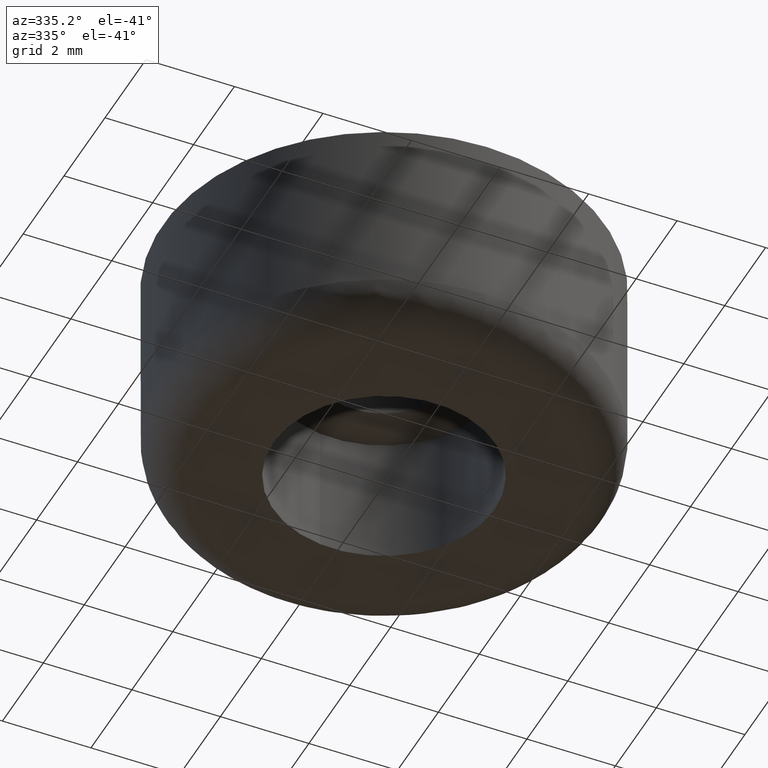
[diagram: clean part render]
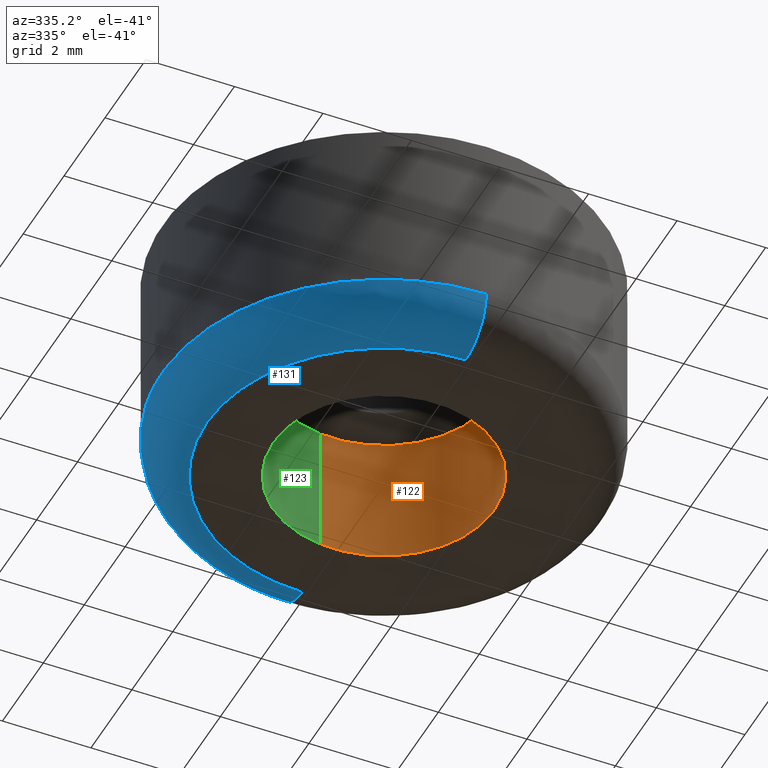
[diagram: same view with three faces highlighted in distinct colors, each labeled with its STEP entity id]
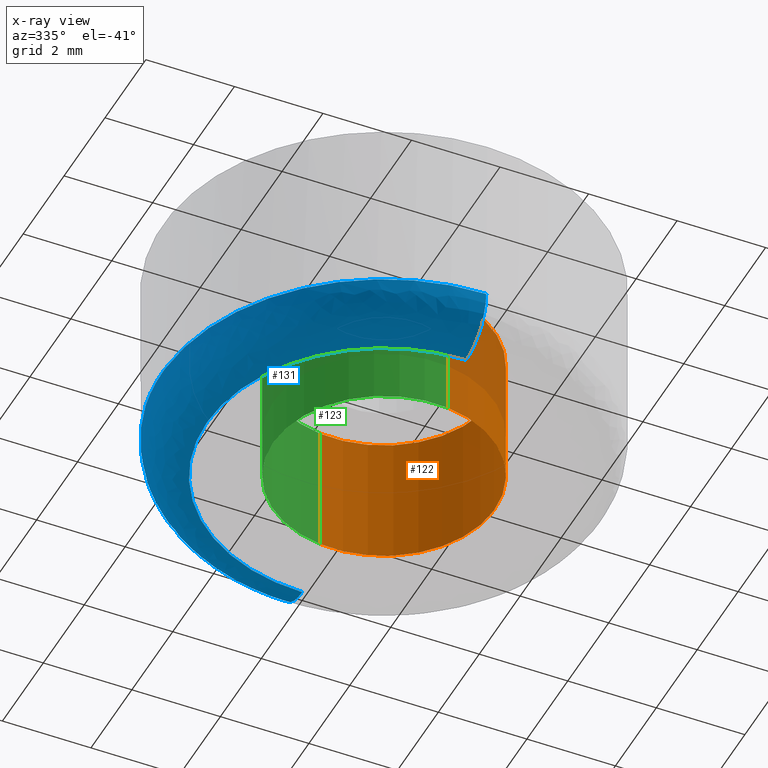
[diagram: x-ray of the same camera — body ghosted, the three highlighted faces saturated]
A machine part, auxiliary view with three faces highlighted in distinct colors.
The next image is the same camera in x-ray (body ghosted, the three faces saturated) — at least one of them is partly hidden behind the body in this view.
Their STEP definitions:

[orange] entity #122 — the highlighted cylindrical surface (partial cylindrical patch) has radius 2.5 mm, axis along (0, 0, 1).
#122=ADVANCED_FACE('',(#239),#238,.F.);
#238=CYLINDRICAL_SURFACE('',#397,2.50000000000E+000);
#239=FACE_OUTER_BOUND('',#398,.T.);
#394=CARTESIAN_POINT('',(4.33468580467E-015,4.89105161793E-016,3.07500000000E+000));
#395=DIRECTION('',(2.58322924375E-015,3.07055953275E-016,1.00000000000E+000));
#396=DIRECTION('',(1.18034234657E-001,-9.93009526364E-001,-4.28943117214E-030));
#397=AXIS2_PLACEMENT_3D('',#394,#395,#396);
#398=EDGE_LOOP('',(#542,#543,#544,#545));
#542=ORIENTED_EDGE('',*,*,#622,.T.);
#543=ORIENTED_EDGE('',*,*,#642,.T.);
#544=ORIENTED_EDGE('',*,*,#628,.F.);
#545=ORIENTED_EDGE('',*,*,#643,.F.);
#622=EDGE_CURVE('',#797,#789,#798,.T.);
#628=EDGE_CURVE('',#832,#839,#840,.T.);
#642=EDGE_CURVE('',#789,#839,#936,.T.);
#643=EDGE_CURVE('',#797,#832,#942,.T.);
#789=VERTEX_POINT('',#1135);
#797=VERTEX_POINT('',#1141);
#798=CIRCLE('',#1145,2.50000000000E+000);
#832=VERTEX_POINT('',#1166);
#839=VERTEX_POINT('',#1171);
#840=CIRCLE('',#1175,2.50000000000E+000);
#936=(BOUNDED_CURVE() B_SPLINE_CURVE(1,(#1240,#1241),.UNSPECIFIED.,.F.,.F.) B_SPLINE_CURVE_WITH_KNOTS((2,2),(8.33333233997E-002,9.16666663280E-001),.UNSPECIFIED.) CURVE() GEOMETRIC_REPRESENTATION_ITEM() RATIONAL_B_SPLINE_CURVE((1.00000000000E+000,1.00000000000E+000)) REPRESENTATION_ITEM('') );
#942=(BOUNDED_CURVE() B_SPLINE_CURVE(1,(#1242,#1243),.UNSPECIFIED.,.F.,.F.) B_SPLINE_CURVE_WITH_KNOTS((2,2),(8.33333333334E-002,9.16666666667E-001),.UNSPECIFIED.) CURVE() GEOMETRIC_REPRESENTATION_ITEM() RATIONAL_B_SPLINE_CURVE((7.50000000000E-001,7.50000000000E-001)) REPRESENTATION_ITEM('') );
#1135=CARTESIAN_POINT('',(2.95084678797E-001,-2.48252392382E+000,6.84156620608E-015));
#1141=CARTESIAN_POINT('',(-2.95514653005E-001,2.48247277726E+000,3.43152040372E-015));
#1142=CARTESIAN_POINT('',(3.31068505943E-013,1.50990331349E-013,5.13154013306E-015));
#1143=DIRECTION('',(-2.28667062420E-014,-3.40687179626E-015,-1.00000000000E+000));
#1144=DIRECTION('',(-1.00000000000E+000,-6.00214322688E-014,2.28667062420E-014));
#1145=AXIS2_PLACEMENT_3D('',#1142,#1143,#1144);
#1166=CARTESIAN_POINT('',(-2.95514653005E-001,2.48247277726E+000,3.00000000000E+000));
#1171=CARTESIAN_POINT('',(2.95084678797E-001,-2.48252392382E+000,3.00000000000E+000));
#1172=CARTESIAN_POINT('',(6.85007606194E-013,-1.05249142734E-013,3.00000000000E+000));
#1173=DIRECTION('',(-5.32907051820E-016,3.76822190084E-016,-1.00000000000E+000));
#1174=DIRECTION('',(-1.00000000000E+000,4.13891143580E-014,5.32907051820E-016));
#1175=AXIS2_PLACEMENT_3D('',#1172,#1173,#1174);
#1240=CARTESIAN_POINT('',(2.95085586642E-001,-2.48252381591E+000,-3.57610832613E-008));
#1241=CARTESIAN_POINT('',(2.95085586642E-001,-2.48252381591E+000,2.99999998781E+000));
#1242=CARTESIAN_POINT('',(-2.95085586642E-001,2.48252381591E+000,2.10942374679E-014));
#1243=CARTESIAN_POINT('',(-2.95085586642E-001,2.48252381591E+000,3.00000000000E+000));

[blue] entity #131 — the highlighted face is a freeform B-spline surface patch.
#131=ADVANCED_FACE('',(#329),#328,.T.);
#328=( BOUNDED_SURFACE() B_SPLINE_SURFACE( 2,2,((#460,#461,#462,#463,#464),(#465,#466,#467,#468,#469),(#470,#471,#472,#473,#474),(#475,#476,#477,#478,#479),(#480,#481,#482,#483,#484)), .UNSPECIFIED.,.F.,.F.,.F.) B_SPLINE_SURFACE_WITH_KNOTS((3,2,3),(3,2,3),(-5.02449880769E-006,1.04719587636E+000,1.57079645909E+000),(3.14159265359E+000,4.71238898038E+000,6.28318530718E+000), .UNSPECIFIED. ) GEOMETRIC_REPRESENTATION_ITEM() RATIONAL_B_SPLINE_SURFACE(((1.00000000000E+000,7.07106781187E-001,1.00000000000E+000,7.07106781187E-001,1.00000000000E+000),(8.66024566367E-001,6.12371843552E-001,8.66024566367E-001,6.12371843552E-001,8.66024566367E-001),(1.00000000000E+000,7.07106781187E-001,1.00000000000E+000,7.07106781187E-001,1.00000000000E+000),(9.33012266257E-001,6.59739300401E-001,9.33012266257E-001,6.59739300401E-001,9.33012266257E-001),(9.33012283183E-001,6.59739312369E-001,9.33012283183E-001,6.59739312369E-001,9.33012283183E-001))) REPRESENTATION_ITEM('') SURFACE() );
#329=FACE_OUTER_BOUND('',#485,.T.);
#460=CARTESIAN_POINT('',(-2.27926380464E-015,4.99999999999E+000,1.00000502450E+000));
#461=CARTESIAN_POINT('',(-4.99999999999E+000,4.99999999999E+000,1.00000502450E+000));
#462=CARTESIAN_POINT('',(-4.99999999999E+000,1.12242052249E-015,1.00000502450E+000));
#463=CARTESIAN_POINT('',(-4.99999999999E+000,-4.99999999999E+000,1.00000502450E+000));
#464=CARTESIAN_POINT('',(-1.05465745083E-015,-4.99999999999E+000,1.00000502450E+000));
#465=CARTESIAN_POINT('',(-2.30367758460E-015,5.00000290089E+000,4.22652522204E-001));
#466=CARTESIAN_POINT('',(-5.00000290089E+000,5.00000290089E+000,4.22652522204E-001));
#467=CARTESIAN_POINT('',(-5.00000290089E+000,1.09674768119E-015,4.22652522204E-001));
#468=CARTESIAN_POINT('',(-5.00000290089E+000,-5.00000290089E+000,4.22652522204E-001));
#469=CARTESIAN_POINT('',(-1.07907052029E-015,-5.00000290089E+000,4.22652522204E-001));
#470=CARTESIAN_POINT('',(-2.25465383705E-015,4.50000145045E+000,1.33975433633E-001));
#471=CARTESIAN_POINT('',(-4.50000145045E+000,4.50000145045E+000,1.33975433633E-001));
#472=CARTESIAN_POINT('',(-4.50000145045E+000,1.14514189624E-015,1.33975433633E-001));
#473=CARTESIAN_POINT('',(-4.50000145045E+000,-4.50000145045E+000,1.33975433633E-001));
#474=CARTESIAN_POINT('',(-1.15250776337E-015,-4.50000145045E+000,1.33975433633E-001));
#475=CARTESIAN_POINT('',(-2.23190184226E-015,4.26795002713E+000,-3.62823375291E-008));
#476=CARTESIAN_POINT('',(-4.26795002713E+000,4.26795002713E+000,-3.62823373136E-008));
#477=CARTESIAN_POINT('',(-4.26795002713E+000,1.16760172405E-015,-3.62823371275E-008));
#478=CARTESIAN_POINT('',(-4.26795002713E+000,-4.26795002713E+000,-3.62823368929E-008));
#479=CARTESIAN_POINT('',(-1.18659009806E-015,-4.26795002713E+000,-3.62823370978E-008));
#480=CARTESIAN_POINT('',(-2.19908849357E-015,3.99999986459E+000,1.14730356870E-014));
#481=CARTESIAN_POINT('',(-3.99999986459E+000,3.99999986459E+000,1.16549580484E-014));
#482=CARTESIAN_POINT('',(-3.99999986459E+000,1.20041507282E-015,1.18300158720E-014));
#483=CARTESIAN_POINT('',(-3.99999986459E+000,-3.99999986459E+000,1.20125574492E-014));
#484=CARTESIAN_POINT('',(-1.21940344368E-015,-3.99999986459E+000,1.18448900433E-014));
#485=EDGE_LOOP('',(#593,#594,#595,#596,#597,#598,#599,#600,#601));
#593=ORIENTED_EDGE('',*,*,#618,.F.);
#594=ORIENTED_EDGE('',*,*,#620,.F.);
#595=ORIENTED_EDGE('',*,*,#658,.F.);
#596=ORIENTED_EDGE('',*,*,#651,.T.);
#597=ORIENTED_EDGE('',*,*,#650,.T.);
#598=ORIENTED_EDGE('',*,*,#649,.T.);
#599=ORIENTED_EDGE('',*,*,#657,.T.);
#600=ORIENTED_EDGE('',*,*,#656,.T.);
#601=ORIENTED_EDGE('',*,*,#659,.T.);
#618=EDGE_CURVE('',#768,#769,#770,.T.);
#620=EDGE_CURVE('',#776,#768,#783,.T.);
#649=EDGE_CURVE('',#979,#972,#980,.T.);
#650=EDGE_CURVE('',#986,#979,#987,.T.);
#651=EDGE_CURVE('',#993,#986,#994,.T.);
#656=EDGE_CURVE('',#1027,#1020,#1028,.T.);
#657=EDGE_CURVE('',#972,#1027,#1034,.T.);
#658=EDGE_CURVE('',#993,#776,#1040,.T.);
#659=EDGE_CURVE('',#1020,#769,#1046,.T.);
#768=VERTEX_POINT('',#1120);
#769=VERTEX_POINT('',#1121);
#770=CIRCLE('',#1125,4.00000000016E+000);
#776=VERTEX_POINT('',#1126);
#783=CIRCLE('',#1134,4.00000000016E+000);
#972=VERTEX_POINT('',#1252);
#979=VERTEX_POINT('',#1255);
#980=CIRCLE('',#1259,5.00000000000E+000);
#986=VERTEX_POINT('',#1260);
#987=CIRCLE('',#1264,4.99999999995E+000);
#993=VERTEX_POINT('',#1265);
#994=CIRCLE('',#1269,5.00000000000E+000);
#1020=VERTEX_POINT('',#1282);
#1027=VERTEX_POINT('',#1287);
#1028=CIRCLE('',#1291,5.00000000000E+000);
#1034=CIRCLE('',#1295,5.00000000000E+000);
#1040=(BOUNDED_CURVE() B_SPLINE_CURVE(2,(#1296,#1297,#1298,#1299,#1300),.UNSPECIFIED.,.F.,.F.) B_SPLINE_CURVE_WITH_KNOTS((3,2,3),(2.60229384581E-007,1.04719587636E+000,1.57079628518E+000),.UNSPECIFIED.) CURVE() GEOMETRIC_REPRESENTATION_ITEM() RATIONAL_B_SPLINE_CURVE((1.00000000000E+000,8.66024566367E-001,1.00000000000E+000,9.33012288507E-001,9.33012283183E-001)) REPRESENTATION_ITEM('') );
#1046=(BOUNDED_CURVE() B_SPLINE_CURVE(2,(#1301,#1302,#1303,#1304,#1305),.UNSPECIFIED.,.F.,.F.) B_SPLINE_CURVE_WITH_KNOTS((3,2,3),(-5.02449880769E-006,1.04719587636E+000,1.57079645909E+000),.UNSPECIFIED.) CURVE() GEOMETRIC_REPRESENTATION_ITEM() RATIONAL_B_SPLINE_CURVE((1.00000000000E+000,8.66024566367E-001,1.00000000000E+000,9.33012266257E-001,9.33012283183E-001)) REPRESENTATION_ITEM('') );
#1120=CARTESIAN_POINT('',(-4.00000000032E+000,-4.99600361081E-016,1.52177099518E-014));
#1121=CARTESIAN_POINT('',(-1.47821472410E-010,4.00000000009E+000,-1.87331645785E-016));
#1122=CARTESIAN_POINT('',(-1.61194835258E-010,-6.81554812587E-011,3.11115901998E-016));
#1123=DIRECTION('',(-3.72664851231E-015,-1.24611886928E-016,-1.00000000000E+000));
#1124=DIRECTION('',(-1.00000000000E+000,1.70391131760E-011,3.72664851231E-015));
#1125=AXIS2_PLACEMENT_3D('',#1122,#1123,#1124);
#1126=CARTESIAN_POINT('',(-6.50040060619E-011,-4.00000000023E+000,8.09563449373E-016));
#1131=CARTESIAN_POINT('',(-1.61194835258E-010,-6.81554812587E-011,3.11115901998E-016));
#1132=DIRECTION('',(-3.72664851231E-015,-1.24611886928E-016,-1.00000000000E+000));
#1133=DIRECTION('',(-1.00000000000E+000,1.70391131760E-011,3.72664851231E-015));
#1134=AXIS2_PLACEMENT_3D('',#1131,#1132,#1133);
#1252=CARTESIAN_POINT('',(-4.87984390253E+000,1.08955196613E+000,1.00000000000E+000));
#1255=CARTESIAN_POINT('',(-5.00000000000E+000,0.00000000000E+000,1.00000000000E+000));
#1256=CARTESIAN_POINT('',(5.22692999994E-013,-5.09814412908E-013,9.99999999981E-001));
#1257=DIRECTION('',(-3.85391718538E-012,9.68161009465E-028,-1.00000000000E+000));
#1258=DIRECTION('',(1.00000000000E+000,-1.01962882582E-013,-3.85391718538E-012));
#1259=AXIS2_PLACEMENT_3D('',#1256,#1257,#1258);
#1260=CARTESIAN_POINT('',(-4.99842094642E+000,-1.25650477218E-001,9.99999999981E-001));
#1261=CARTESIAN_POINT('',(-5.14672748864E-011,-6.13148420925E-013,9.99999940501E-001));
#1262=DIRECTION('',(-1.18998908855E-008,6.36637710442E-015,-1.00000000000E+000));
#1263=DIRECTION('',(9.99684189283E-001,2.51300954437E-002,-1.18961326124E-008));
#1264=AXIS2_PLACEMENT_3D('',#1261,#1262,#1263);
#1265=CARTESIAN_POINT('',(-2.12371853669E-011,-5.00000000000E+000,1.00000000000E+000));
#1266=CARTESIAN_POINT('',(1.64090963040E-012,-2.16937579012E-012,1.00000000000E+000));
#1267=DIRECTION('',(-1.75415275237E-015,-1.84450748510E-015,-1.00000000000E+000));
#1268=DIRECTION('',(-9.75968999961E-001,2.17909410342E-001,1.31006316906E-015));
#1269=AXIS2_PLACEMENT_3D('',#1266,#1267,#1268);
#1282=CARTESIAN_POINT('',(-6.35795946517E-004,4.99999995958E+000,1.00000000002E+000));
#1287=CARTESIAN_POINT('',(-1.25650477218E-001,4.99842094642E+000,9.99999999981E-001));
#1288=CARTESIAN_POINT('',(3.99680288865E-015,4.44089209850E-015,9.99999999969E-001));
#1289=DIRECTION('',(2.98800426376E-010,9.99129983372E-012,-1.00000000000E+000));
#1290=DIRECTION('',(2.51300954435E-002,-9.99684189283E-001,-2.47926124075E-012));
#1291=AXIS2_PLACEMENT_3D('',#1288,#1289,#1290);
#1292=CARTESIAN_POINT('',(5.22692999994E-013,-5.09814412908E-013,9.99999999981E-001));
#1293=DIRECTION('',(-3.85391718538E-012,9.68161009465E-028,-1.00000000000E+000));
#1294=DIRECTION('',(1.00000000000E+000,-1.01962882582E-013,-3.85391718538E-012));
#1295=AXIS2_PLACEMENT_3D('',#1292,#1293,#1294);
#1296=CARTESIAN_POINT('',(-1.05465745083E-015,-4.99999999999E+000,1.00000502450E+000));
#1297=CARTESIAN_POINT('',(-1.07907052029E-015,-5.00000290089E+000,4.22652522204E-001));
#1298=CARTESIAN_POINT('',(-1.15250776337E-015,-4.50000145045E+000,1.33975433633E-001));
#1299=CARTESIAN_POINT('',(-1.18659008592E-015,-4.26795010974E+000,1.14118682501E-008));
#1300=CARTESIAN_POINT('',(-1.21940342188E-015,-4.00000004259E+000,3.58428506082E-015));
#1301=CARTESIAN_POINT('',(-2.27926380464E-015,4.99999999999E+000,1.00000502450E+000));
#1302=CARTESIAN_POINT('',(-2.30367758460E-015,5.00000290089E+000,4.22652522204E-001));
#1303=CARTESIAN_POINT('',(-2.25465383705E-015,4.50000145045E+000,1.33975433633E-001));
#1304=CARTESIAN_POINT('',(-2.23190184226E-015,4.26795002713E+000,-3.62823375291E-008));
#1305=CARTESIAN_POINT('',(-2.19908849357E-015,3.99999986459E+000,1.14730356870E-014));

[green] entity #123 — the highlighted cylindrical surface (partial cylindrical patch) has radius 2.5 mm, axis along (0, 0, 1).
#123=ADVANCED_FACE('',(#249),#248,.F.);
#248=CYLINDRICAL_SURFACE('',#402,2.50000000000E+000);
#249=FACE_OUTER_BOUND('',#403,.T.);
#399=CARTESIAN_POINT('',(4.33468580467E-015,4.89105161793E-016,3.07500000000E+000));
#400=DIRECTION('',(2.58322924375E-015,3.07055953275E-016,1.00000000000E+000));
#401=DIRECTION('',(1.18034234657E-001,-9.93009526364E-001,-4.28943117214E-030));
#402=AXIS2_PLACEMENT_3D('',#399,#400,#401);
#403=EDGE_LOOP('',(#546,#547,#548,#549,#550,#551));
#546=ORIENTED_EDGE('',*,*,#627,.F.);
#547=ORIENTED_EDGE('',*,*,#629,.F.);
#548=ORIENTED_EDGE('',*,*,#642,.F.);
#549=ORIENTED_EDGE('',*,*,#621,.T.);
#550=ORIENTED_EDGE('',*,*,#623,.T.);
#551=ORIENTED_EDGE('',*,*,#643,.T.);
#621=EDGE_CURVE('',#789,#790,#791,.T.);
#623=EDGE_CURVE('',#790,#797,#804,.T.);
#627=EDGE_CURVE('',#831,#832,#833,.T.);
#629=EDGE_CURVE('',#839,#831,#846,.T.);
#642=EDGE_CURVE('',#789,#839,#936,.T.);
#643=EDGE_CURVE('',#797,#832,#942,.T.);
#789=VERTEX_POINT('',#1135);
#790=VERTEX_POINT('',#1136);
#791=CIRCLE('',#1140,2.50000000000E+000);
#797=VERTEX_POINT('',#1141);
#804=CIRCLE('',#1149,2.50000000000E+000);
#831=VERTEX_POINT('',#1165);
#832=VERTEX_POINT('',#1166);
#833=CIRCLE('',#1170,2.50000000000E+000);
#839=VERTEX_POINT('',#1171);
#846=CIRCLE('',#1179,2.50000000000E+000);
#936=(BOUNDED_CURVE() B_SPLINE_CURVE(1,(#1240,#1241),.UNSPECIFIED.,.F.,.F.) B_SPLINE_CURVE_WITH_KNOTS((2,2),(8.33333233997E-002,9.16666663280E-001),.UNSPECIFIED.) CURVE() GEOMETRIC_REPRESENTATION_ITEM() RATIONAL_B_SPLINE_CURVE((1.00000000000E+000,1.00000000000E+000)) REPRESENTATION_ITEM('') );
#942=(BOUNDED_CURVE() B_SPLINE_CURVE(1,(#1242,#1243),.UNSPECIFIED.,.F.,.F.) B_SPLINE_CURVE_WITH_KNOTS((2,2),(8.33333333334E-002,9.16666666667E-001),.UNSPECIFIED.) CURVE() GEOMETRIC_REPRESENTATION_ITEM() RATIONAL_B_SPLINE_CURVE((7.50000000000E-001,7.50000000000E-001)) REPRESENTATION_ITEM('') );
#1135=CARTESIAN_POINT('',(2.95084678797E-001,-2.48252392382E+000,6.84156620608E-015));
#1136=CARTESIAN_POINT('',(-2.50000000000E+000,0.00000000000E+000,6.22983057381E-014));
#1137=CARTESIAN_POINT('',(3.31068505943E-013,1.50990331349E-013,5.13154013306E-015));
#1138=DIRECTION('',(-2.28667062420E-014,-3.40687179626E-015,-1.00000000000E+000));
#1139=DIRECTION('',(-1.00000000000E+000,-6.00214322688E-014,2.28667062420E-014));
#1140=AXIS2_PLACEMENT_3D('',#1137,#1138,#1139);
#1141=CARTESIAN_POINT('',(-2.95514653005E-001,2.48247277726E+000,3.43152040372E-015));
#1146=CARTESIAN_POINT('',(3.31068505943E-013,1.50990331349E-013,5.13154013306E-015));
#1147=DIRECTION('',(-2.28667062420E-014,-3.40687179626E-015,-1.00000000000E+000));
#1148=DIRECTION('',(-1.00000000000E+000,-6.00214322688E-014,2.28667062420E-014));
#1149=AXIS2_PLACEMENT_3D('',#1146,#1147,#1148);
#1165=CARTESIAN_POINT('',(-2.50000000000E+000,-9.72285403288E-016,3.00000000000E+000));
#1166=CARTESIAN_POINT('',(-2.95514653005E-001,2.48247277726E+000,3.00000000000E+000));
#1167=CARTESIAN_POINT('',(6.85007606194E-013,-1.05249142734E-013,3.00000000000E+000));
#1168=DIRECTION('',(-5.32907051820E-016,3.76822190084E-016,-1.00000000000E+000));
#1169=DIRECTION('',(-1.00000000000E+000,4.13891143580E-014,5.32907051820E-016));
#1170=AXIS2_PLACEMENT_3D('',#1167,#1168,#1169);
#1171=CARTESIAN_POINT('',(2.95084678797E-001,-2.48252392382E+000,3.00000000000E+000));
#1176=CARTESIAN_POINT('',(6.85007606194E-013,-1.05249142734E-013,3.00000000000E+000));
#1177=DIRECTION('',(-5.32907051820E-016,3.76822190084E-016,-1.00000000000E+000));
#1178=DIRECTION('',(-1.00000000000E+000,4.13891143580E-014,5.32907051820E-016));
#1179=AXIS2_PLACEMENT_3D('',#1176,#1177,#1178);
#1240=CARTESIAN_POINT('',(2.95085586642E-001,-2.48252381591E+000,-3.57610832613E-008));
#1241=CARTESIAN_POINT('',(2.95085586642E-001,-2.48252381591E+000,2.99999998781E+000));
#1242=CARTESIAN_POINT('',(-2.95085586642E-001,2.48252381591E+000,2.10942374679E-014));
#1243=CARTESIAN_POINT('',(-2.95085586642E-001,2.48252381591E+000,3.00000000000E+000));